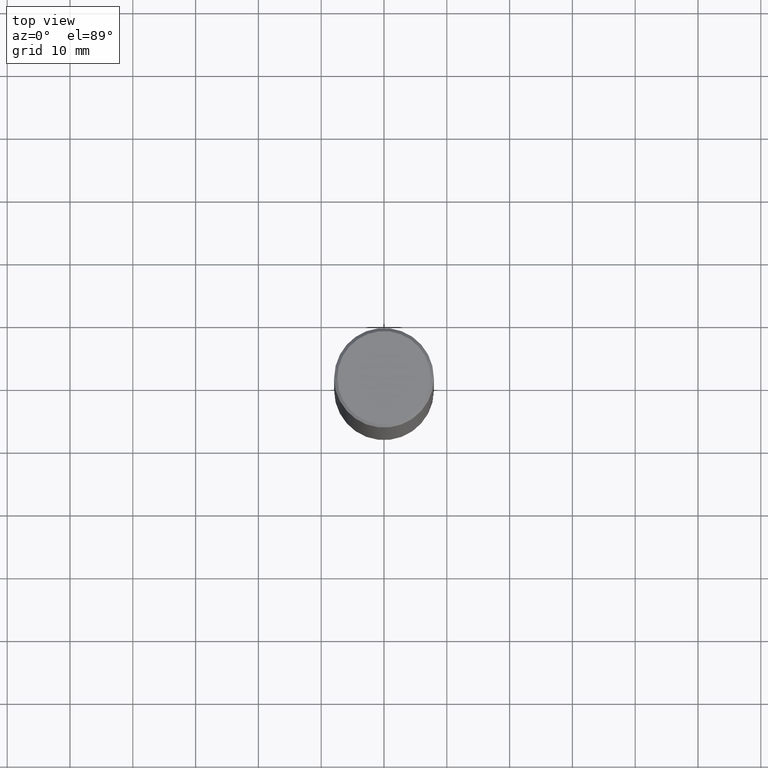
[diagram: clean part render]
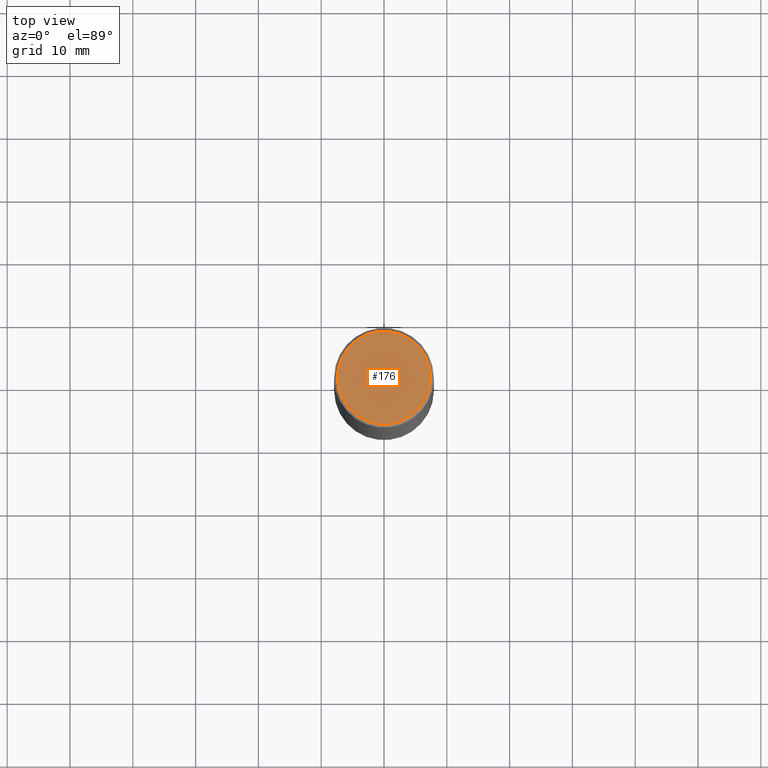
[diagram: same view with one face highlighted and labeled with its STEP entity id]
A machine part, top view. The second image highlights one B-rep face of the part: STEP entity #176.
In plain terms, the highlighted planar face has unit normal (0, -0, -1).
Its self-contained STEP definition (entity closure, byte-faithful):
#20 = ORIENTED_EDGE ( 'NONE', *, *, #335, .T. ) ;
#56 = ORIENTED_EDGE ( 'NONE', *, *, #238, .T. ) ;
#63 = CIRCLE ( 'NONE', #321, 0.2924999999999997602 ) ;
#64 = CARTESIAN_POINT ( 'NONE',  ( 2.042516583223230962E-15, 0.2924999999999997602, -1.016989779121518801E-15 ) ) ;
#65 = CARTESIAN_POINT ( 'NONE',  ( -2.087702828670439639E-46, 2.980686340760894400E-32, 8.537024980200822558E-18 ) ) ;
#70 = DIRECTION ( 'NONE',  ( 1.000000000000000000, -6.982962677686266711E-15, 4.876067333457693400E-29 ) ) ;
#74 = VERTEX_POINT ( 'NONE', #221 ) ;
#91 = PLANE ( 'NONE',  #218 ) ;
#135 = CARTESIAN_POINT ( 'NONE',  ( 0.2924999999999997602, -2.110215457714318353E-15, 8.537024980215342529E-18 ) ) ;
#171 = CIRCLE ( 'NONE', #289, 0.2924999999999997602 ) ;
#176 = ADVANCED_FACE ( 'NONE', ( #348 ), #91, .F. ) ;
#184 = DIRECTION ( 'NONE',  ( 1.000000000000000000, -6.982962677686266711E-15, 4.876067333457693400E-29 ) ) ;
#215 = DIRECTION ( 'NONE',  ( -1.000000000000000000, 6.982962677686265922E-15, -4.876176775795935793E-29 ) ) ;
#218 = AXIS2_PLACEMENT_3D ( 'NONE', #64, #254, #215 ) ;
#221 = CARTESIAN_POINT ( 'NONE',  ( -0.2924999999999997602, 2.077431396611662611E-15, 8.537024980186416602E-18 ) ) ;
#222 = DIRECTION ( 'NONE',  ( -2.445468806185136597E-29, 3.491481338843145583E-15, 1.000000000000000000 ) ) ;
#238 = EDGE_CURVE ( 'NONE', #74, #280, #63, .T. ) ;
#254 = DIRECTION ( 'NONE',  ( 2.438088387897960049E-29, -3.491481338843145188E-15, -1.000000000000000000 ) ) ;
#270 = CARTESIAN_POINT ( 'NONE',  ( -2.087702828670439639E-46, 2.980686340760894400E-32, 8.537024980200822558E-18 ) ) ;
#280 = VERTEX_POINT ( 'NONE', #135 ) ;
#289 = AXIS2_PLACEMENT_3D ( 'NONE', #270, #363, #184 ) ;
#319 = EDGE_LOOP ( 'NONE', ( #56, #20 ) ) ;
#321 = AXIS2_PLACEMENT_3D ( 'NONE', #65, #222, #70 ) ;
#335 = EDGE_CURVE ( 'NONE', #280, #74, #171, .T. ) ;
#348 = FACE_OUTER_BOUND ( 'NONE', #319, .T. ) ;
#363 = DIRECTION ( 'NONE',  ( -2.445468806185136597E-29, 3.491481338843145583E-15, 1.000000000000000000 ) ) ;